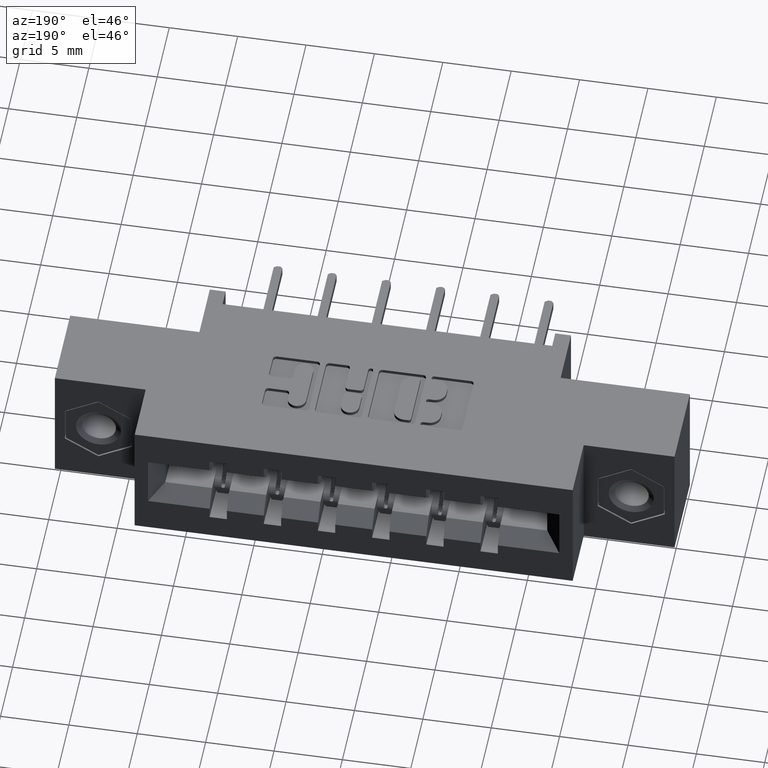
[diagram: clean part render]
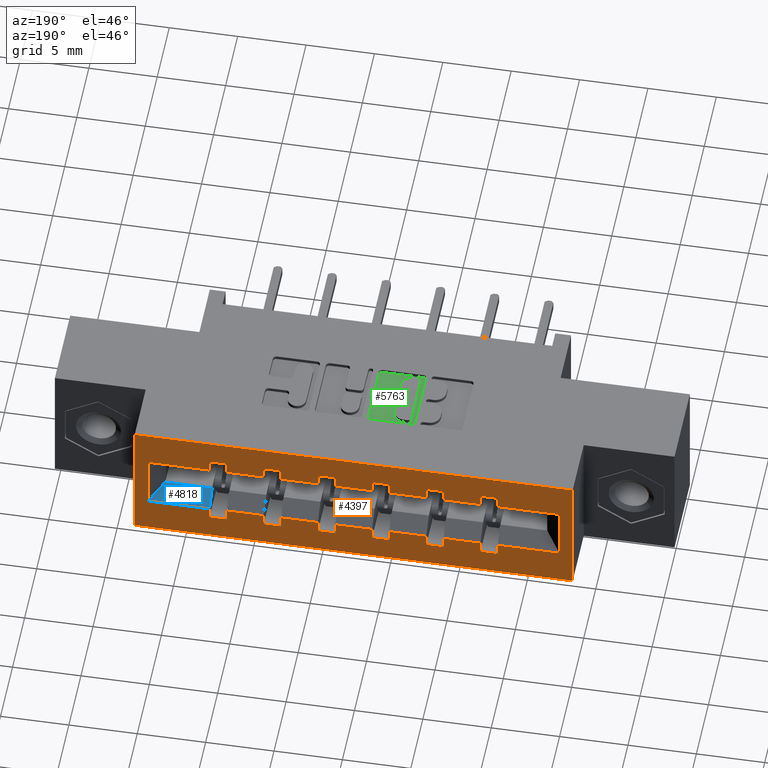
[diagram: same view with three faces highlighted in distinct colors, each labeled with its STEP entity id]
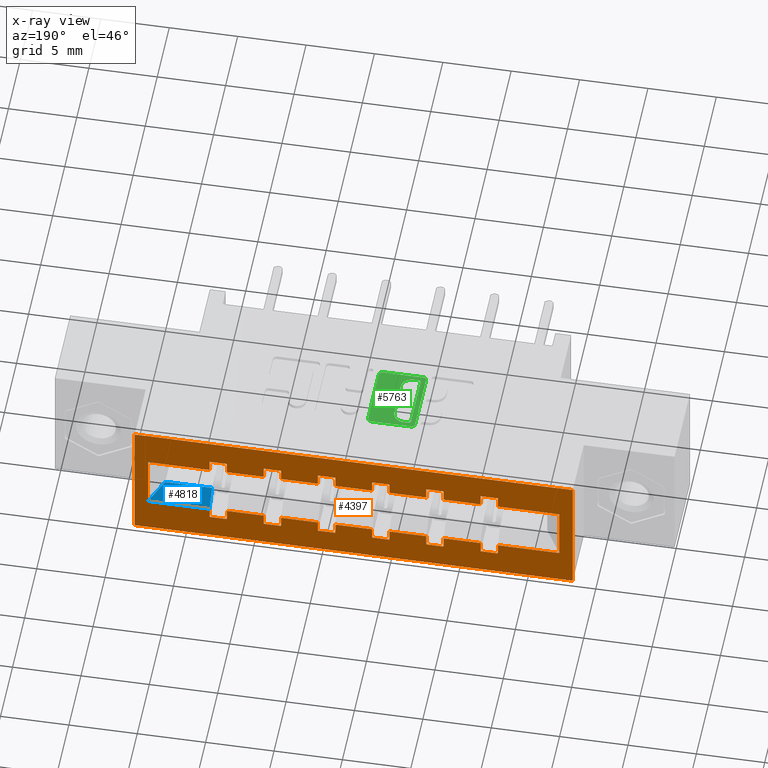
[diagram: x-ray of the same camera — body ghosted, the three highlighted faces saturated]
A machine part, auxiliary view with three faces highlighted in distinct colors.
The next image is the same camera in x-ray (body ghosted, the three faces saturated) — at least one of them is partly hidden behind the body in this view.
Their STEP definitions:

[orange] entity #4397 — the highlighted planar face has unit normal (0, -1, 0).
#73 = EDGE_CURVE ( 'NONE', #5885, #3686, #6283, .T. ) ;
#126 = EDGE_CURVE ( 'NONE', #3481, #6683, #7571, .T. ) ;
#140 = EDGE_CURVE ( 'NONE', #8311, #6920, #1560, .T. ) ;
#146 = LINE ( 'NONE', #7516, #7939 ) ;
#182 = EDGE_CURVE ( 'NONE', #5735, #3189, #7328, .T. ) ;
#215 = DIRECTION ( 'NONE',  ( -0.0000000000000000000, 1.809170856731306300E-015, 1.000000000000000000 ) ) ;
#234 = FACE_BOUND ( 'NONE', #7843, .T. ) ;
#240 = ORIENTED_EDGE ( 'NONE', *, *, #6482, .T. ) ;
#246 = DIRECTION ( 'NONE',  ( -0.0000000000000000000, 1.809170856731306300E-015, 1.000000000000000000 ) ) ;
#278 = VERTEX_POINT ( 'NONE', #6143 ) ;
#312 = EDGE_CURVE ( 'NONE', #7969, #9607, #3890, .T. ) ;
#351 = VERTEX_POINT ( 'NONE', #9042 ) ;
#390 = EDGE_CURVE ( 'NONE', #7865, #7034, #8943, .T. ) ;
#414 = ORIENTED_EDGE ( 'NONE', *, *, #4275, .T. ) ;
#437 = EDGE_CURVE ( 'NONE', #3139, #5885, #8480, .T. ) ;
#463 = CARTESIAN_POINT ( 'NONE',  ( 0.9949999999999998800, 0.5999999999999999800, -0.2640000000000001800 ) ) ;
#468 = LINE ( 'NONE', #2087, #2274 ) ;
#494 = DIRECTION ( 'NONE',  ( 1.000000000000000000, 0.0000000000000000000, 1.241749088029209900E-016 ) ) ;
#496 = CARTESIAN_POINT ( 'NONE',  ( 0.7889999999999998100, 0.5999999999999997600, -0.1060000000000004500 ) ) ;
#503 = EDGE_CURVE ( 'NONE', #6803, #2831, #8026, .T. ) ;
#505 = EDGE_CURVE ( 'NONE', #877, #6683, #6272, .T. ) ;
#581 = VECTOR ( 'NONE', #6144, 39.37007874015748100 ) ;
#582 = EDGE_CURVE ( 'NONE', #4668, #5138, #3552, .T. ) ;
#642 = ORIENTED_EDGE ( 'NONE', *, *, #437, .T. ) ;
#698 = DIRECTION ( 'NONE',  ( 1.000000000000000000, 0.0000000000000000000, 0.0000000000000000000 ) ) ;
#702 = CARTESIAN_POINT ( 'NONE',  ( 1.522500000000001100, 0.5999999999999999800, -0.3700000000000001600 ) ) ;
#746 = DIRECTION ( 'NONE',  ( 1.000000000000000000, 0.0000000000000000000, 1.241749088029209900E-016 ) ) ;
#771 = DIRECTION ( 'NONE',  ( -0.0000000000000000000, 1.809170856731306300E-015, 1.000000000000000000 ) ) ;
#796 = VERTEX_POINT ( 'NONE', #8656 ) ;
#842 = ORIENTED_EDGE ( 'NONE', *, *, #8759, .T. ) ;
#877 = VERTEX_POINT ( 'NONE', #3512 ) ;
#878 = ORIENTED_EDGE ( 'NONE', *, *, #1074, .T. ) ;
#910 = ORIENTED_EDGE ( 'NONE', *, *, #390, .T. ) ;
#924 = VECTOR ( 'NONE', #2619, 39.37007874015748100 ) ;
#931 = VERTEX_POINT ( 'NONE', #7490 ) ;
#935 = VECTOR ( 'NONE', #7828, 39.37007874015748100 ) ;
#942 = EDGE_CURVE ( 'NONE', #6227, #8997, #4218, .T. ) ;
#953 = VECTOR ( 'NONE', #2694, 39.37007874015748100 ) ;
#961 = VECTOR ( 'NONE', #4272, 39.37007874015748100 ) ;
#998 = LINE ( 'NONE', #4955, #4775 ) ;
#1014 = DIRECTION ( 'NONE',  ( 0.0000000000000000000, 0.0000000000000000000, 1.000000000000000000 ) ) ;
#1017 = ORIENTED_EDGE ( 'NONE', *, *, #2184, .F. ) ;
#1047 = VECTOR ( 'NONE', #2806, 39.37007874015748100 ) ;
#1061 = VECTOR ( 'NONE', #5341, 39.37007874015748100 ) ;
#1074 = EDGE_CURVE ( 'NONE', #3815, #8430, #5554, .T. ) ;
#1082 = VECTOR ( 'NONE', #6097, 39.37007874015748100 ) ;
#1097 = DIRECTION ( 'NONE',  ( -0.0000000000000000000, 1.809170856731306300E-015, 1.000000000000000000 ) ) ;
#1134 = VERTEX_POINT ( 'NONE', #2589 ) ;
#1145 = VERTEX_POINT ( 'NONE', #2376 ) ;
#1185 = LINE ( 'NONE', #2672, #953 ) ;
#1202 = ORIENTED_EDGE ( 'NONE', *, *, #3188, .T. ) ;
#1243 = VERTEX_POINT ( 'NONE', #3362 ) ;
#1255 = EDGE_CURVE ( 'NONE', #7519, #7716, #7660, .T. ) ;
#1278 = CARTESIAN_POINT ( 'NONE',  ( 0.5269999999999999100, 0.5999999999999999800, -0.2975000000000000400 ) ) ;
#1338 = ORIENTED_EDGE ( 'NONE', *, *, #7982, .T. ) ;
#1354 = VECTOR ( 'NONE', #8203, 39.37007874015748100 ) ;
#1465 = EDGE_CURVE ( 'NONE', #6278, #1501, #3885, .T. ) ;
#1501 = VERTEX_POINT ( 'NONE', #3725 ) ;
#1537 = ORIENTED_EDGE ( 'NONE', *, *, #6409, .F. ) ;
#1548 = CARTESIAN_POINT ( 'NONE',  ( 1.256999999999999700, 0.5999999999999997600, -0.1060000000000003900 ) ) ;
#1552 = VECTOR ( 'NONE', #746, 39.37007874015748100 ) ;
#1560 = LINE ( 'NONE', #7473, #5326 ) ;
#1622 = CARTESIAN_POINT ( 'NONE',  ( 0.9449999999999998400, 0.5999999999999997600, -0.1060000000000004000 ) ) ;
#1645 = LINE ( 'NONE', #4037, #3635 ) ;
#1650 = ORIENTED_EDGE ( 'NONE', *, *, #1672, .T. ) ;
#1672 = EDGE_CURVE ( 'NONE', #5138, #2668, #1778, .T. ) ;
#1689 = VECTOR ( 'NONE', #698, 39.37007874015748100 ) ;
#1692 = VECTOR ( 'NONE', #7253, 39.37007874015748100 ) ;
#1722 = CARTESIAN_POINT ( 'NONE',  ( 0.6329999999999999000, 0.5999999999999999800, -0.2975000000000000400 ) ) ;
#1778 = LINE ( 'NONE', #9619, #3544 ) ;
#1792 = EDGE_CURVE ( 'NONE', #3481, #7865, #6618, .T. ) ;
#1802 = ORIENTED_EDGE ( 'NONE', *, *, #3321, .T. ) ;
#1804 = VECTOR ( 'NONE', #3924, 39.37007874015748100 ) ;
#1818 = CARTESIAN_POINT ( 'NONE',  ( 0.9449999999999998400, 0.5999999999999999800, -0.2640000000000001800 ) ) ;
#1822 = VECTOR ( 'NONE', #8565, 39.37007874015748100 ) ;
#1824 = VERTEX_POINT ( 'NONE', #5042 ) ;
#1834 = CARTESIAN_POINT ( 'NONE',  ( 0.8389999999999998600, 0.5999999999999999800, -0.2975000000000000400 ) ) ;
#1905 = VECTOR ( 'NONE', #246, 39.37007874015748100 ) ;
#1918 = CARTESIAN_POINT ( 'NONE',  ( 0.8389999999999998600, 0.5999999999999998700, -0.07250000000000052200 ) ) ;
#1920 = DIRECTION ( 'NONE',  ( -1.000000000000000000, 0.0000000000000000000, -1.241749088029209900E-016 ) ) ;
#1952 = CARTESIAN_POINT ( 'NONE',  ( 0.8389999999999998600, 0.5999999999999997600, -0.1060000000000004500 ) ) ;
#1970 = ORIENTED_EDGE ( 'NONE', *, *, #8994, .T. ) ;
#1983 = VERTEX_POINT ( 'NONE', #8918 ) ;
#1984 = EDGE_CURVE ( 'NONE', #1145, #7969, #2977, .T. ) ;
#2002 = CARTESIAN_POINT ( 'NONE',  ( -1.316254033310958700E-017, 0.5999999999999999800, -0.2640000000000002900 ) ) ;
#2033 = VECTOR ( 'NONE', #7144, 39.37007874015748100 ) ;
#2055 = VECTOR ( 'NONE', #7119, 39.37007874015748100 ) ;
#2059 = LINE ( 'NONE', #8500, #1822 ) ;
#2064 = CARTESIAN_POINT ( 'NONE',  ( 1.306999999999999700, 0.5999999999999999800, -0.2640000000000001200 ) ) ;
#2087 = CARTESIAN_POINT ( 'NONE',  ( 0.7889999999999998100, 0.5999999999999998700, -0.07250000000000052200 ) ) ;
#2099 = DIRECTION ( 'NONE',  ( 0.0000000000000000000, -0.0000000000000000000, -1.000000000000000000 ) ) ;
#2109 = ORIENTED_EDGE ( 'NONE', *, *, #8148, .T. ) ;
#2116 = DIRECTION ( 'NONE',  ( 0.0000000000000000000, -1.000000000000000000, 0.0000000000000000000 ) ) ;
#2142 = PLANE ( 'NONE',  #5542 ) ;
#2181 = VERTEX_POINT ( 'NONE', #8877 ) ;
#2184 = EDGE_CURVE ( 'NONE', #8204, #3199, #5064, .T. ) ;
#2197 = CARTESIAN_POINT ( 'NONE',  ( 0.0000000000000000000, 0.5999999999999999800, -0.3700000000000000000 ) ) ;
#2203 = EDGE_LOOP ( 'NONE', ( #4759, #5481, #2679, #4779 ) ) ;
#2235 = LINE ( 'NONE', #9281, #7992 ) ;
#2274 = VECTOR ( 'NONE', #4331, 39.37007874015748100 ) ;
#2283 = VERTEX_POINT ( 'NONE', #7413 ) ;
#2300 = CARTESIAN_POINT ( 'NONE',  ( -1.316254033310958700E-017, 0.5999999999999999800, -0.2640000000000002900 ) ) ;
#2313 = ORIENTED_EDGE ( 'NONE', *, *, #3301, .F. ) ;
#2376 = CARTESIAN_POINT ( 'NONE',  ( 0.4769999999999999200, 0.5999999999999997600, -0.1060000000000005100 ) ) ;
#2393 = CARTESIAN_POINT ( 'NONE',  ( 1.101000000000000000, 0.5999999999999997600, -0.1060000000000003900 ) ) ;
#2463 = ORIENTED_EDGE ( 'NONE', *, *, #5707, .T. ) ;
#2475 = CARTESIAN_POINT ( 'NONE',  ( 1.306999999999999700, 0.5999999999999999800, -0.2975000000000000400 ) ) ;
#2510 = VECTOR ( 'NONE', #9374, 39.37007874015748100 ) ;
#2568 = CARTESIAN_POINT ( 'NONE',  ( 0.9949999999999998800, 0.5999999999999999800, -0.2975000000000000400 ) ) ;
#2577 = ORIENTED_EDGE ( 'NONE', *, *, #1792, .T. ) ;
#2589 = CARTESIAN_POINT ( 'NONE',  ( 0.2999999999999999300, 0.5999999999999999800, -0.1060000000000003200 ) ) ;
#2598 = CARTESIAN_POINT ( 'NONE',  ( 0.4769999999999999200, 0.5999999999999998700, -0.07250000000000052200 ) ) ;
#2611 = EDGE_CURVE ( 'NONE', #1134, #5735, #4203, .T. ) ;
#2615 = CARTESIAN_POINT ( 'NONE',  ( -3.278217592397109900E-017, 0.5999999999999999800, -0.1060000000000003600 ) ) ;
#2619 = DIRECTION ( 'NONE',  ( -0.0000000000000000000, 1.809170856731306300E-015, 1.000000000000000000 ) ) ;
#2642 = CARTESIAN_POINT ( 'NONE',  ( 0.0000000000000000000, 0.5999999999999999800, -0.3700000000000000000 ) ) ;
#2656 = ORIENTED_EDGE ( 'NONE', *, *, #8766, .T. ) ;
#2668 = VERTEX_POINT ( 'NONE', #2848 ) ;
#2671 = CARTESIAN_POINT ( 'NONE',  ( 1.101000000000000000, 0.5999999999999999800, -0.2975000000000000400 ) ) ;
#2672 = CARTESIAN_POINT ( 'NONE',  ( 1.101000000000000000, 0.5999999999999999800, -0.2975000000000000400 ) ) ;
#2679 = ORIENTED_EDGE ( 'NONE', *, *, #2688, .T. ) ;
#2688 = EDGE_CURVE ( 'NONE', #4621, #7265, #3079, .T. ) ;
#2694 = DIRECTION ( 'NONE',  ( 0.0000000000000000000, 0.0000000000000000000, 1.000000000000000000 ) ) ;
#2705 = DIRECTION ( 'NONE',  ( 1.000000000000000000, -0.0000000000000000000, -0.0000000000000000000 ) ) ;
#2717 = ORIENTED_EDGE ( 'NONE', *, *, #9076, .T. ) ;
#2727 = CARTESIAN_POINT ( 'NONE',  ( 1.101000000000000000, 0.5999999999999999800, -0.2975000000000000400 ) ) ;
#2736 = CARTESIAN_POINT ( 'NONE',  ( 0.2615000000000000700, 0.5999999999999999800, -0.3700000000000000000 ) ) ;
#2780 = CARTESIAN_POINT ( 'NONE',  ( 0.9449999999999998400, 0.5999999999999999800, -0.2975000000000000400 ) ) ;
#2783 = VERTEX_POINT ( 'NONE', #1548 ) ;
#2803 = DIRECTION ( 'NONE',  ( -1.000000000000000000, -0.0000000000000000000, -0.0000000000000000000 ) ) ;
#2806 = DIRECTION ( 'NONE',  ( -0.0000000000000000000, 1.809170856731306300E-015, 1.000000000000000000 ) ) ;
#2820 = DIRECTION ( 'NONE',  ( 0.0000000000000000000, 0.0000000000000000000, 1.000000000000000000 ) ) ;
#2831 = VERTEX_POINT ( 'NONE', #463 ) ;
#2848 = CARTESIAN_POINT ( 'NONE',  ( 0.6829999999999999400, 0.5999999999999998700, -0.07250000000000052200 ) ) ;
#2942 = ORIENTED_EDGE ( 'NONE', *, *, #6604, .F. ) ;
#2943 = EDGE_CURVE ( 'NONE', #8646, #877, #2235, .T. ) ;
#2975 = CARTESIAN_POINT ( 'NONE',  ( 0.6329999999999999000, 0.5999999999999999800, -0.2975000000000000400 ) ) ;
#2977 = LINE ( 'NONE', #7760, #935 ) ;
#3010 = VERTEX_POINT ( 'NONE', #8983 ) ;
#3013 = VERTEX_POINT ( 'NONE', #8966 ) ;
#3063 = DIRECTION ( 'NONE',  ( 1.000000000000000000, 0.0000000000000000000, 1.241749088029209900E-016 ) ) ;
#3079 = LINE ( 'NONE', #2642, #8569 ) ;
#3084 = EDGE_CURVE ( 'NONE', #7118, #5170, #2059, .T. ) ;
#3086 = VECTOR ( 'NONE', #8624, 39.37007874015748100 ) ;
#3120 = LINE ( 'NONE', #6186, #1082 ) ;
#3139 = VERTEX_POINT ( 'NONE', #8205 ) ;
#3154 = ORIENTED_EDGE ( 'NONE', *, *, #7419, .F. ) ;
#3188 = EDGE_CURVE ( 'NONE', #2831, #3010, #8849, .T. ) ;
#3189 = VERTEX_POINT ( 'NONE', #8117 ) ;
#3199 = VERTEX_POINT ( 'NONE', #8002 ) ;
#3215 = CARTESIAN_POINT ( 'NONE',  ( 0.6329999999999999000, 0.5999999999999999800, -0.2975000000000000400 ) ) ;
#3218 = LINE ( 'NONE', #4226, #4965 ) ;
#3219 = VECTOR ( 'NONE', #8098, 39.37007874015748100 ) ;
#3221 = LINE ( 'NONE', #2727, #8945 ) ;
#3301 = EDGE_CURVE ( 'NONE', #7118, #351, #146, .T. ) ;
#3306 = ORIENTED_EDGE ( 'NONE', *, *, #5766, .T. ) ;
#3321 = EDGE_CURVE ( 'NONE', #8204, #278, #3912, .T. ) ;
#3328 = CARTESIAN_POINT ( 'NONE',  ( -1.316254033310958700E-017, 0.5999999999999999800, -0.2640000000000002900 ) ) ;
#3362 = CARTESIAN_POINT ( 'NONE',  ( 0.2615000000000001200, 0.5999999999999999800, 0.0000000000000000000 ) ) ;
#3370 = CARTESIAN_POINT ( 'NONE',  ( 0.2999999999999999300, 0.5999999999999999800, -0.2640000000000002900 ) ) ;
#3398 = ORIENTED_EDGE ( 'NONE', *, *, #7847, .F. ) ;
#3409 = DIRECTION ( 'NONE',  ( 1.000000000000000000, 0.0000000000000000000, 1.241749088029209900E-016 ) ) ;
#3429 = CARTESIAN_POINT ( 'NONE',  ( -3.278217592397109900E-017, 0.5999999999999999800, -0.1060000000000003600 ) ) ;
#3439 = ORIENTED_EDGE ( 'NONE', *, *, #1984, .F. ) ;
#3440 = VECTOR ( 'NONE', #3946, 39.37007874015748100 ) ;
#3445 = EDGE_CURVE ( 'NONE', #4621, #931, #4746, .T. ) ;
#3481 = VERTEX_POINT ( 'NONE', #6862 ) ;
#3503 = VERTEX_POINT ( 'NONE', #6676 ) ;
#3512 = CARTESIAN_POINT ( 'NONE',  ( 1.151000000000000000, 0.5999999999999999800, -0.2640000000000001800 ) ) ;
#3527 = VECTOR ( 'NONE', #3733, 39.37007874015748100 ) ;
#3538 = CARTESIAN_POINT ( 'NONE',  ( 0.6829999999999999400, 0.5999999999999999800, -0.2975000000000000400 ) ) ;
#3544 = VECTOR ( 'NONE', #215, 39.37007874015748100 ) ;
#3550 = LINE ( 'NONE', #2300, #5563 ) ;
#3552 = LINE ( 'NONE', #6960, #7088 ) ;
#3561 = VECTOR ( 'NONE', #1014, 39.37007874015748100 ) ;
#3573 = VECTOR ( 'NONE', #6183, 39.37007874015748100 ) ;
#3583 = CARTESIAN_POINT ( 'NONE',  ( 0.6329999999999999000, 0.5999999999999997600, -0.1060000000000004800 ) ) ;
#3596 = ORIENTED_EDGE ( 'NONE', *, *, #8960, .F. ) ;
#3610 = EDGE_CURVE ( 'NONE', #796, #8430, #7115, .T. ) ;
#3617 = EDGE_CURVE ( 'NONE', #1145, #1134, #3120, .T. ) ;
#3635 = VECTOR ( 'NONE', #8548, 39.37007874015748100 ) ;
#3649 = LINE ( 'NONE', #4006, #1905 ) ;
#3686 = VERTEX_POINT ( 'NONE', #5813 ) ;
#3711 = ORIENTED_EDGE ( 'NONE', *, *, #503, .T. ) ;
#3725 = CARTESIAN_POINT ( 'NONE',  ( 1.484000000000000700, 0.5999999999999999800, -0.1060000000000001800 ) ) ;
#3727 = DIRECTION ( 'NONE',  ( 1.000000000000000000, 0.0000000000000000000, 1.241749088029209900E-016 ) ) ;
#3733 = DIRECTION ( 'NONE',  ( 0.0000000000000000000, 0.0000000000000000000, -1.000000000000000000 ) ) ;
#3734 = ORIENTED_EDGE ( 'NONE', *, *, #312, .F. ) ;
#3772 = LINE ( 'NONE', #7453, #1552 ) ;
#3815 = VERTEX_POINT ( 'NONE', #4959 ) ;
#3885 = LINE ( 'NONE', #3976, #9380 ) ;
#3890 = LINE ( 'NONE', #2598, #7680 ) ;
#3912 = LINE ( 'NONE', #7313, #1692 ) ;
#3913 = CARTESIAN_POINT ( 'NONE',  ( 0.2999999999999999300, 0.5999999999999999800, -0.3700000000000000000 ) ) ;
#3924 = DIRECTION ( 'NONE',  ( 1.000000000000000000, -0.0000000000000000000, -0.0000000000000000000 ) ) ;
#3946 = DIRECTION ( 'NONE',  ( 1.000000000000000000, -0.0000000000000000000, -0.0000000000000000000 ) ) ;
#3976 = CARTESIAN_POINT ( 'NONE',  ( 1.484000000000000700, 0.5999999999999999800, -0.3700000000000000000 ) ) ;
#4006 = CARTESIAN_POINT ( 'NONE',  ( 0.6329999999999999000, 0.5999999999999998700, -0.07250000000000052200 ) ) ;
#4011 = VECTOR ( 'NONE', #7862, 39.37007874015748100 ) ;
#4012 = FACE_OUTER_BOUND ( 'NONE', #2203, .T. ) ;
#4032 = ORIENTED_EDGE ( 'NONE', *, *, #2611, .T. ) ;
#4034 = LINE ( 'NONE', #2615, #2055 ) ;
#4037 = CARTESIAN_POINT ( 'NONE',  ( 0.9449999999999998400, 0.5999999999999999800, -0.2975000000000000400 ) ) ;
#4059 = CARTESIAN_POINT ( 'NONE',  ( 0.4769999999999999200, 0.5999999999999998700, -0.07250000000000052200 ) ) ;
#4082 = CARTESIAN_POINT ( 'NONE',  ( 1.256999999999999700, 0.5999999999999998700, -0.07250000000000052200 ) ) ;
#4126 = LINE ( 'NONE', #3328, #5936 ) ;
#4167 = CARTESIAN_POINT ( 'NONE',  ( 1.151000000000000000, 0.5999999999999998700, -0.07250000000000052200 ) ) ;
#4168 = EDGE_CURVE ( 'NONE', #3503, #8997, #4126, .T. ) ;
#4174 = DIRECTION ( 'NONE',  ( 1.000000000000000000, -0.0000000000000000000, -0.0000000000000000000 ) ) ;
#4203 = LINE ( 'NONE', #3913, #3527 ) ;
#4218 = LINE ( 'NONE', #2780, #8013 ) ;
#4226 = CARTESIAN_POINT ( 'NONE',  ( 0.4769999999999999200, 0.5999999999999999800, -0.2975000000000000400 ) ) ;
#4272 = DIRECTION ( 'NONE',  ( 0.0000000000000000000, 0.0000000000000000000, 1.000000000000000000 ) ) ;
#4275 = EDGE_CURVE ( 'NONE', #6373, #8646, #3221, .T. ) ;
#4283 = VECTOR ( 'NONE', #494, 39.37007874015748100 ) ;
#4284 = ORIENTED_EDGE ( 'NONE', *, *, #140, .F. ) ;
#4287 = ORIENTED_EDGE ( 'NONE', *, *, #8654, .F. ) ;
#4289 = EDGE_CURVE ( 'NONE', #6373, #3010, #1185, .T. ) ;
#4292 = DIRECTION ( 'NONE',  ( -0.0000000000000000000, 1.809170856731306300E-015, 1.000000000000000000 ) ) ;
#4294 = CARTESIAN_POINT ( 'NONE',  ( -3.278217592397109900E-017, 0.5999999999999999800, -0.1060000000000003600 ) ) ;
#4316 = CARTESIAN_POINT ( 'NONE',  ( 0.5269999999999999100, 0.5999999999999998700, -0.07250000000000052200 ) ) ;
#4331 = DIRECTION ( 'NONE',  ( 1.000000000000000000, -0.0000000000000000000, -0.0000000000000000000 ) ) ;
#4353 = ORIENTED_EDGE ( 'NONE', *, *, #4289, .F. ) ;
#4397 = ADVANCED_FACE ( 'NONE', ( #4012, #234 ), #2142, .F. ) ;
#4433 = ORIENTED_EDGE ( 'NONE', *, *, #182, .T. ) ;
#4453 = ORIENTED_EDGE ( 'NONE', *, *, #1255, .T. ) ;
#4517 = CARTESIAN_POINT ( 'NONE',  ( 1.151000000000000000, 0.5999999999999998700, -0.07250000000000052200 ) ) ;
#4523 = LINE ( 'NONE', #2002, #4283 ) ;
#4561 = CARTESIAN_POINT ( 'NONE',  ( 1.101000000000000000, 0.5999999999999998700, -0.07250000000000052200 ) ) ;
#4565 = DIRECTION ( 'NONE',  ( 0.0000000000000000000, 0.0000000000000000000, 1.000000000000000000 ) ) ;
#4621 = VERTEX_POINT ( 'NONE', #702 ) ;
#4668 = VERTEX_POINT ( 'NONE', #496 ) ;
#4724 = VECTOR ( 'NONE', #8905, 39.37007874015748100 ) ;
#4746 = LINE ( 'NONE', #6901, #8965 ) ;
#4759 = ORIENTED_EDGE ( 'NONE', *, *, #7643, .T. ) ;
#4775 = VECTOR ( 'NONE', #4174, 39.37007874015748100 ) ;
#4779 = ORIENTED_EDGE ( 'NONE', *, *, #6412, .F. ) ;
#4789 = CARTESIAN_POINT ( 'NONE',  ( 0.9449999999999998400, 0.5999999999999999800, -0.2975000000000000400 ) ) ;
#4795 = ORIENTED_EDGE ( 'NONE', *, *, #942, .F. ) ;
#4822 = DIRECTION ( 'NONE',  ( 0.0000000000000000000, 0.0000000000000000000, 1.000000000000000000 ) ) ;
#4876 = CARTESIAN_POINT ( 'NONE',  ( 0.9949999999999998800, 0.5999999999999998700, -0.07250000000000052200 ) ) ;
#4877 = VECTOR ( 'NONE', #8039, 39.37007874015748100 ) ;
#4955 = CARTESIAN_POINT ( 'NONE',  ( 0.9449999999999998400, 0.5999999999999998700, -0.07250000000000052200 ) ) ;
#4959 = CARTESIAN_POINT ( 'NONE',  ( 1.306999999999999700, 0.5999999999999997600, -0.1060000000000003700 ) ) ;
#4965 = VECTOR ( 'NONE', #5782, 39.37007874015748100 ) ;
#4971 = CARTESIAN_POINT ( 'NONE',  ( -1.316254033310958700E-017, 0.5999999999999999800, -0.2640000000000002900 ) ) ;
#5019 = LINE ( 'NONE', #2736, #8533 ) ;
#5042 = CARTESIAN_POINT ( 'NONE',  ( 0.6829999999999999400, 0.5999999999999999800, -0.2640000000000002300 ) ) ;
#5064 = LINE ( 'NONE', #8796, #3086 ) ;
#5114 = CARTESIAN_POINT ( 'NONE',  ( 0.7889999999999998100, 0.5999999999999999800, -0.2975000000000000400 ) ) ;
#5138 = VERTEX_POINT ( 'NONE', #7552 ) ;
#5170 = VERTEX_POINT ( 'NONE', #1952 ) ;
#5225 = CARTESIAN_POINT ( 'NONE',  ( 0.0000000000000000000, 0.5999999999999999800, 0.0000000000000000000 ) ) ;
#5326 = VECTOR ( 'NONE', #7489, 39.37007874015748100 ) ;
#5341 = DIRECTION ( 'NONE',  ( -0.0000000000000000000, 1.809170856731306300E-015, 1.000000000000000000 ) ) ;
#5427 = VECTOR ( 'NONE', #9553, 39.37007874015748100 ) ;
#5447 = EDGE_CURVE ( 'NONE', #7716, #9607, #9026, .T. ) ;
#5481 = ORIENTED_EDGE ( 'NONE', *, *, #3445, .F. ) ;
#5542 = AXIS2_PLACEMENT_3D ( 'NONE', #2197, #2116, #2099 ) ;
#5554 = LINE ( 'NONE', #6583, #8806 ) ;
#5563 = VECTOR ( 'NONE', #3063, 39.37007874015748100 ) ;
#5598 = LINE ( 'NONE', #7993, #9292 ) ;
#5636 = EDGE_CURVE ( 'NONE', #6227, #6803, #1645, .T. ) ;
#5695 = CARTESIAN_POINT ( 'NONE',  ( 0.5269999999999999100, 0.5999999999999998700, -0.07250000000000052200 ) ) ;
#5707 = EDGE_CURVE ( 'NONE', #2181, #2283, #6730, .T. ) ;
#5735 = VERTEX_POINT ( 'NONE', #3370 ) ;
#5766 = EDGE_CURVE ( 'NONE', #2783, #3013, #8227, .T. ) ;
#5782 = DIRECTION ( 'NONE',  ( 0.0000000000000000000, 0.0000000000000000000, 1.000000000000000000 ) ) ;
#5788 = DIRECTION ( 'NONE',  ( 1.000000000000000000, -0.0000000000000000000, -0.0000000000000000000 ) ) ;
#5813 = CARTESIAN_POINT ( 'NONE',  ( 0.5269999999999999100, 0.5999999999999999800, -0.2640000000000002900 ) ) ;
#5861 = ORIENTED_EDGE ( 'NONE', *, *, #8573, .F. ) ;
#5883 = ORIENTED_EDGE ( 'NONE', *, *, #7706, .T. ) ;
#5885 = VERTEX_POINT ( 'NONE', #6596 ) ;
#5936 = VECTOR ( 'NONE', #3409, 39.37007874015748100 ) ;
#6061 = ORIENTED_EDGE ( 'NONE', *, *, #7351, .T. ) ;
#6097 = DIRECTION ( 'NONE',  ( -1.000000000000000000, 0.0000000000000000000, -1.241749088029209900E-016 ) ) ;
#6143 = CARTESIAN_POINT ( 'NONE',  ( 0.8389999999999998600, 0.5999999999999999800, -0.2975000000000000400 ) ) ;
#6144 = DIRECTION ( 'NONE',  ( 1.000000000000000000, -0.0000000000000000000, -0.0000000000000000000 ) ) ;
#6166 = ORIENTED_EDGE ( 'NONE', *, *, #126, .F. ) ;
#6183 = DIRECTION ( 'NONE',  ( 1.000000000000000000, -0.0000000000000000000, -0.0000000000000000000 ) ) ;
#6186 = CARTESIAN_POINT ( 'NONE',  ( -3.278217592397109900E-017, 0.5999999999999999800, -0.1060000000000003600 ) ) ;
#6193 = CARTESIAN_POINT ( 'NONE',  ( 1.256999999999999700, 0.5999999999999999800, -0.2975000000000000400 ) ) ;
#6196 = CARTESIAN_POINT ( 'NONE',  ( 1.256999999999999700, 0.5999999999999998700, -0.07250000000000052200 ) ) ;
#6227 = VERTEX_POINT ( 'NONE', #4789 ) ;
#6272 = LINE ( 'NONE', #7691, #4011 ) ;
#6273 = CARTESIAN_POINT ( 'NONE',  ( 1.256999999999999700, 0.5999999999999999800, -0.2975000000000000400 ) ) ;
#6278 = VERTEX_POINT ( 'NONE', #6360 ) ;
#6283 = LINE ( 'NONE', #1278, #2033 ) ;
#6303 = CARTESIAN_POINT ( 'NONE',  ( -3.278217592397109900E-017, 0.5999999999999999800, -0.1060000000000003600 ) ) ;
#6337 = EDGE_CURVE ( 'NONE', #2783, #796, #9427, .T. ) ;
#6360 = CARTESIAN_POINT ( 'NONE',  ( 1.484000000000000700, 0.5999999999999999800, -0.2640000000000001200 ) ) ;
#6373 = VERTEX_POINT ( 'NONE', #2671 ) ;
#6374 = CARTESIAN_POINT ( 'NONE',  ( 0.6329999999999999000, 0.5999999999999998700, -0.07250000000000052200 ) ) ;
#6409 = EDGE_CURVE ( 'NONE', #351, #2283, #998, .T. ) ;
#6410 = VECTOR ( 'NONE', #4822, 39.37007874015748100 ) ;
#6412 = EDGE_CURVE ( 'NONE', #1243, #7265, #5019, .T. ) ;
#6482 = EDGE_CURVE ( 'NONE', #3686, #1983, #4523, .T. ) ;
#6583 = CARTESIAN_POINT ( 'NONE',  ( 1.306999999999999700, 0.5999999999999998700, -0.07250000000000052200 ) ) ;
#6596 = CARTESIAN_POINT ( 'NONE',  ( 0.5269999999999999100, 0.5999999999999999800, -0.2975000000000000400 ) ) ;
#6604 = EDGE_CURVE ( 'NONE', #8900, #1983, #7135, .T. ) ;
#6606 = CARTESIAN_POINT ( 'NONE',  ( 1.151000000000000000, 0.5999999999999999800, -0.2975000000000000400 ) ) ;
#6618 = LINE ( 'NONE', #6193, #581 ) ;
#6676 = CARTESIAN_POINT ( 'NONE',  ( 0.8389999999999998600, 0.5999999999999999800, -0.2640000000000002300 ) ) ;
#6683 = VERTEX_POINT ( 'NONE', #8427 ) ;
#6730 = LINE ( 'NONE', #4876, #924 ) ;
#6772 = VECTOR ( 'NONE', #771, 39.37007874015748100 ) ;
#6783 = ORIENTED_EDGE ( 'NONE', *, *, #3084, .T. ) ;
#6786 = CARTESIAN_POINT ( 'NONE',  ( 1.101000000000000000, 0.5999999999999998700, -0.07250000000000052200 ) ) ;
#6803 = VERTEX_POINT ( 'NONE', #2568 ) ;
#6830 = CARTESIAN_POINT ( 'NONE',  ( 0.5269999999999999100, 0.5999999999999999800, -0.1060000000000002900 ) ) ;
#6841 = DIRECTION ( 'NONE',  ( -1.000000000000000000, 0.0000000000000000000, -1.241749088029209900E-016 ) ) ;
#6862 = CARTESIAN_POINT ( 'NONE',  ( 1.256999999999999700, 0.5999999999999999800, -0.2975000000000000400 ) ) ;
#6868 = DIRECTION ( 'NONE',  ( 0.0000000000000000000, 0.0000000000000000000, 1.000000000000000000 ) ) ;
#6901 = CARTESIAN_POINT ( 'NONE',  ( 1.522500000000001100, 0.5999999999999999800, -0.3700000000000001600 ) ) ;
#6920 = VERTEX_POINT ( 'NONE', #4167 ) ;
#6960 = CARTESIAN_POINT ( 'NONE',  ( -3.278217592397109900E-017, 0.5999999999999999800, -0.1060000000000003600 ) ) ;
#6965 = LINE ( 'NONE', #1918, #8239 ) ;
#6985 = LINE ( 'NONE', #3538, #961 ) ;
#7034 = VERTEX_POINT ( 'NONE', #2064 ) ;
#7081 = DIRECTION ( 'NONE',  ( -1.000000000000000000, 0.0000000000000000000, -1.241749088029209900E-016 ) ) ;
#7086 = LINE ( 'NONE', #4561, #1061 ) ;
#7088 = VECTOR ( 'NONE', #6841, 39.37007874015748100 ) ;
#7115 = LINE ( 'NONE', #6196, #3573 ) ;
#7118 = VERTEX_POINT ( 'NONE', #1622 ) ;
#7119 = DIRECTION ( 'NONE',  ( -1.000000000000000000, 0.0000000000000000000, -1.241749088029209900E-016 ) ) ;
#7135 = LINE ( 'NONE', #2975, #1354 ) ;
#7144 = DIRECTION ( 'NONE',  ( 0.0000000000000000000, 0.0000000000000000000, 1.000000000000000000 ) ) ;
#7145 = VERTEX_POINT ( 'NONE', #2393 ) ;
#7196 = VECTOR ( 'NONE', #7081, 39.37007874015748100 ) ;
#7250 = VECTOR ( 'NONE', #1097, 39.37007874015748100 ) ;
#7253 = DIRECTION ( 'NONE',  ( 1.000000000000000000, -0.0000000000000000000, -0.0000000000000000000 ) ) ;
#7265 = VERTEX_POINT ( 'NONE', #8508 ) ;
#7270 = VERTEX_POINT ( 'NONE', #9228 ) ;
#7306 = DIRECTION ( 'NONE',  ( -0.0000000000000000000, 1.809170856731306300E-015, 1.000000000000000000 ) ) ;
#7313 = CARTESIAN_POINT ( 'NONE',  ( 0.7889999999999998100, 0.5999999999999999800, -0.2975000000000000400 ) ) ;
#7328 = LINE ( 'NONE', #4971, #9052 ) ;
#7336 = ORIENTED_EDGE ( 'NONE', *, *, #5447, .T. ) ;
#7351 = EDGE_CURVE ( 'NONE', #7145, #2181, #4034, .T. ) ;
#7413 = CARTESIAN_POINT ( 'NONE',  ( 0.9949999999999998800, 0.5999999999999998700, -0.07250000000000052200 ) ) ;
#7419 = EDGE_CURVE ( 'NONE', #4668, #8152, #5598, .T. ) ;
#7437 = LINE ( 'NONE', #6303, #7196 ) ;
#7453 = CARTESIAN_POINT ( 'NONE',  ( -1.316254033310958700E-017, 0.5999999999999999800, -0.2640000000000002900 ) ) ;
#7473 = CARTESIAN_POINT ( 'NONE',  ( 1.101000000000000000, 0.5999999999999998700, -0.07250000000000052200 ) ) ;
#7489 = DIRECTION ( 'NONE',  ( 1.000000000000000000, -0.0000000000000000000, -0.0000000000000000000 ) ) ;
#7490 = CARTESIAN_POINT ( 'NONE',  ( 1.522500000000001100, 0.5999999999999999800, -1.704402182713329600E-016 ) ) ;
#7496 = DIRECTION ( 'NONE',  ( -0.0000000000000000000, 1.809170856731306300E-015, 1.000000000000000000 ) ) ;
#7498 = VERTEX_POINT ( 'NONE', #9500 ) ;
#7516 = CARTESIAN_POINT ( 'NONE',  ( 0.9449999999999998400, 0.5999999999999998700, -0.07250000000000052200 ) ) ;
#7519 = VERTEX_POINT ( 'NONE', #3583 ) ;
#7552 = CARTESIAN_POINT ( 'NONE',  ( 0.6829999999999999400, 0.5999999999999997600, -0.1060000000000004800 ) ) ;
#7571 = LINE ( 'NONE', #6273, #3561 ) ;
#7578 = LINE ( 'NONE', #8429, #1804 ) ;
#7594 = ORIENTED_EDGE ( 'NONE', *, *, #3617, .T. ) ;
#7617 = ORIENTED_EDGE ( 'NONE', *, *, #3610, .F. ) ;
#7643 = EDGE_CURVE ( 'NONE', #1243, #931, #9176, .T. ) ;
#7660 = LINE ( 'NONE', #4294, #5427 ) ;
#7680 = VECTOR ( 'NONE', #5788, 39.37007874015748100 ) ;
#7691 = CARTESIAN_POINT ( 'NONE',  ( -1.316254033310958700E-017, 0.5999999999999999800, -0.2640000000000002900 ) ) ;
#7700 = ORIENTED_EDGE ( 'NONE', *, *, #73, .T. ) ;
#7706 = EDGE_CURVE ( 'NONE', #3013, #6920, #8726, .T. ) ;
#7716 = VERTEX_POINT ( 'NONE', #6830 ) ;
#7760 = CARTESIAN_POINT ( 'NONE',  ( 0.4769999999999999200, 0.5999999999999998700, -0.07250000000000052200 ) ) ;
#7828 = DIRECTION ( 'NONE',  ( -0.0000000000000000000, 1.809170856731306300E-015, 1.000000000000000000 ) ) ;
#7843 = EDGE_LOOP ( 'NONE', ( #7617, #9074, #3306, #5883, #4284, #9335, #6061, #2463, #1537, #2313, #6783, #2717, #4287, #3154, #8385, #1650, #3398, #3596, #4453, #7336, #3734, #3439, #7594, #4032, #4433, #5861, #642, #7700, #240, #2942, #8865, #2109, #842, #1017, #1802, #1338, #9291, #4795, #9093, #3711, #1202, #4353, #414, #8182, #8329, #6166, #2577, #910, #2656, #8618, #1970, #878 ) ) ;
#7847 = EDGE_CURVE ( 'NONE', #9008, #2668, #7578, .T. ) ;
#7862 = DIRECTION ( 'NONE',  ( 1.000000000000000000, 0.0000000000000000000, 1.241749088029209900E-016 ) ) ;
#7865 = VERTEX_POINT ( 'NONE', #2475 ) ;
#7882 = CARTESIAN_POINT ( 'NONE',  ( 0.4769999999999999200, 0.5999999999999999800, -0.2975000000000000400 ) ) ;
#7939 = VECTOR ( 'NONE', #7496, 39.37007874015748100 ) ;
#7969 = VERTEX_POINT ( 'NONE', #4059 ) ;
#7982 = EDGE_CURVE ( 'NONE', #278, #3503, #8611, .T. ) ;
#7992 = VECTOR ( 'NONE', #9293, 39.37007874015748100 ) ;
#7993 = CARTESIAN_POINT ( 'NONE',  ( 0.7889999999999998100, 0.5999999999999998700, -0.07250000000000052200 ) ) ;
#8002 = CARTESIAN_POINT ( 'NONE',  ( 0.7889999999999998100, 0.5999999999999999800, -0.2640000000000002300 ) ) ;
#8013 = VECTOR ( 'NONE', #2820, 39.37007874015748100 ) ;
#8026 = LINE ( 'NONE', #8881, #2510 ) ;
#8039 = DIRECTION ( 'NONE',  ( 1.000000000000000000, 0.0000000000000000000, 1.241749088029209900E-016 ) ) ;
#8053 = CARTESIAN_POINT ( 'NONE',  ( -1.316254033310958700E-017, 0.5999999999999999800, -0.2640000000000002900 ) ) ;
#8098 = DIRECTION ( 'NONE',  ( 0.0000000000000000000, 0.0000000000000000000, 1.000000000000000000 ) ) ;
#8117 = CARTESIAN_POINT ( 'NONE',  ( 0.4769999999999999200, 0.5999999999999999800, -0.2640000000000002900 ) ) ;
#8119 = CARTESIAN_POINT ( 'NONE',  ( 1.306999999999999700, 0.5999999999999999800, -0.2975000000000000400 ) ) ;
#8148 = EDGE_CURVE ( 'NONE', #7498, #1824, #6985, .T. ) ;
#8152 = VERTEX_POINT ( 'NONE', #8776 ) ;
#8182 = ORIENTED_EDGE ( 'NONE', *, *, #2943, .T. ) ;
#8204 = VERTEX_POINT ( 'NONE', #5114 ) ;
#8203 = DIRECTION ( 'NONE',  ( 0.0000000000000000000, 0.0000000000000000000, 1.000000000000000000 ) ) ;
#8205 = CARTESIAN_POINT ( 'NONE',  ( 0.4769999999999999200, 0.5999999999999999800, -0.2975000000000000400 ) ) ;
#8227 = LINE ( 'NONE', #3429, #8451 ) ;
#8239 = VECTOR ( 'NONE', #4292, 39.37007874015748100 ) ;
#8311 = VERTEX_POINT ( 'NONE', #6786 ) ;
#8329 = ORIENTED_EDGE ( 'NONE', *, *, #505, .T. ) ;
#8353 = CARTESIAN_POINT ( 'NONE',  ( 1.306999999999999700, 0.5999999999999998700, -0.07250000000000052200 ) ) ;
#8385 = ORIENTED_EDGE ( 'NONE', *, *, #582, .T. ) ;
#8427 = CARTESIAN_POINT ( 'NONE',  ( 1.256999999999999700, 0.5999999999999999800, -0.2640000000000001200 ) ) ;
#8429 = CARTESIAN_POINT ( 'NONE',  ( 0.6329999999999999000, 0.5999999999999998700, -0.07250000000000052200 ) ) ;
#8430 = VERTEX_POINT ( 'NONE', #8353 ) ;
#8451 = VECTOR ( 'NONE', #1920, 39.37007874015748100 ) ;
#8480 = LINE ( 'NONE', #7882, #4724 ) ;
#8500 = CARTESIAN_POINT ( 'NONE',  ( -3.278217592397109900E-017, 0.5999999999999999800, -0.1060000000000003600 ) ) ;
#8508 = CARTESIAN_POINT ( 'NONE',  ( 0.2615000000000000700, 0.5999999999999999800, -0.3700000000000000000 ) ) ;
#8513 = EDGE_CURVE ( 'NONE', #8900, #7498, #9386, .T. ) ;
#8533 = VECTOR ( 'NONE', #8715, 39.37007874015748100 ) ;
#8548 = DIRECTION ( 'NONE',  ( 1.000000000000000000, -0.0000000000000000000, -0.0000000000000000000 ) ) ;
#8565 = DIRECTION ( 'NONE',  ( -1.000000000000000000, 0.0000000000000000000, -1.241749088029209900E-016 ) ) ;
#8569 = VECTOR ( 'NONE', #2803, 39.37007874015748100 ) ;
#8573 = EDGE_CURVE ( 'NONE', #3139, #3189, #3218, .T. ) ;
#8611 = LINE ( 'NONE', #1834, #6410 ) ;
#8618 = ORIENTED_EDGE ( 'NONE', *, *, #1465, .T. ) ;
#8624 = DIRECTION ( 'NONE',  ( 0.0000000000000000000, 0.0000000000000000000, 1.000000000000000000 ) ) ;
#8646 = VERTEX_POINT ( 'NONE', #6606 ) ;
#8654 = EDGE_CURVE ( 'NONE', #8152, #7270, #468, .T. ) ;
#8656 = CARTESIAN_POINT ( 'NONE',  ( 1.256999999999999700, 0.5999999999999998700, -0.07250000000000052200 ) ) ;
#8715 = DIRECTION ( 'NONE',  ( -9.229216194811698800E-017, -0.0000000000000000000, -1.000000000000000000 ) ) ;
#8724 = DIRECTION ( 'NONE',  ( -0.0000000000000000000, 1.809170856731306300E-015, 1.000000000000000000 ) ) ;
#8726 = LINE ( 'NONE', #4517, #6772 ) ;
#8759 = EDGE_CURVE ( 'NONE', #1824, #3199, #3772, .T. ) ;
#8766 = EDGE_CURVE ( 'NONE', #7034, #6278, #3550, .T. ) ;
#8776 = CARTESIAN_POINT ( 'NONE',  ( 0.7889999999999998100, 0.5999999999999998700, -0.07250000000000052200 ) ) ;
#8796 = CARTESIAN_POINT ( 'NONE',  ( 0.7889999999999998100, 0.5999999999999999800, -0.2975000000000000400 ) ) ;
#8806 = VECTOR ( 'NONE', #7306, 39.37007874015748100 ) ;
#8815 = EDGE_CURVE ( 'NONE', #7145, #8311, #7086, .T. ) ;
#8849 = LINE ( 'NONE', #8053, #4877 ) ;
#8865 = ORIENTED_EDGE ( 'NONE', *, *, #8513, .T. ) ;
#8877 = CARTESIAN_POINT ( 'NONE',  ( 0.9949999999999998800, 0.5999999999999997600, -0.1060000000000004000 ) ) ;
#8881 = CARTESIAN_POINT ( 'NONE',  ( 0.9949999999999998800, 0.5999999999999999800, -0.2975000000000000400 ) ) ;
#8900 = VERTEX_POINT ( 'NONE', #3215 ) ;
#8905 = DIRECTION ( 'NONE',  ( 1.000000000000000000, -0.0000000000000000000, -0.0000000000000000000 ) ) ;
#8918 = CARTESIAN_POINT ( 'NONE',  ( 0.6329999999999999000, 0.5999999999999999800, -0.2640000000000002300 ) ) ;
#8943 = LINE ( 'NONE', #8119, #3219 ) ;
#8945 = VECTOR ( 'NONE', #2705, 39.37007874015748100 ) ;
#8960 = EDGE_CURVE ( 'NONE', #7519, #9008, #3649, .T. ) ;
#8965 = VECTOR ( 'NONE', #6868, 39.37007874015748100 ) ;
#8966 = CARTESIAN_POINT ( 'NONE',  ( 1.151000000000000000, 0.5999999999999997600, -0.1060000000000003900 ) ) ;
#8983 = CARTESIAN_POINT ( 'NONE',  ( 1.101000000000000000, 0.5999999999999999800, -0.2640000000000001800 ) ) ;
#8994 = EDGE_CURVE ( 'NONE', #1501, #3815, #7437, .T. ) ;
#8997 = VERTEX_POINT ( 'NONE', #1818 ) ;
#9008 = VERTEX_POINT ( 'NONE', #6374 ) ;
#9026 = LINE ( 'NONE', #4316, #1047 ) ;
#9042 = CARTESIAN_POINT ( 'NONE',  ( 0.9449999999999998400, 0.5999999999999998700, -0.07250000000000052200 ) ) ;
#9052 = VECTOR ( 'NONE', #3727, 39.37007874015748100 ) ;
#9074 = ORIENTED_EDGE ( 'NONE', *, *, #6337, .F. ) ;
#9076 = EDGE_CURVE ( 'NONE', #5170, #7270, #6965, .T. ) ;
#9093 = ORIENTED_EDGE ( 'NONE', *, *, #5636, .T. ) ;
#9176 = LINE ( 'NONE', #5225, #1689 ) ;
#9228 = CARTESIAN_POINT ( 'NONE',  ( 0.8389999999999998600, 0.5999999999999998700, -0.07250000000000052200 ) ) ;
#9281 = CARTESIAN_POINT ( 'NONE',  ( 1.151000000000000000, 0.5999999999999999800, -0.2975000000000000400 ) ) ;
#9291 = ORIENTED_EDGE ( 'NONE', *, *, #4168, .T. ) ;
#9292 = VECTOR ( 'NONE', #8724, 39.37007874015748100 ) ;
#9293 = DIRECTION ( 'NONE',  ( 0.0000000000000000000, 0.0000000000000000000, 1.000000000000000000 ) ) ;
#9335 = ORIENTED_EDGE ( 'NONE', *, *, #8815, .F. ) ;
#9374 = DIRECTION ( 'NONE',  ( 0.0000000000000000000, 0.0000000000000000000, 1.000000000000000000 ) ) ;
#9380 = VECTOR ( 'NONE', #4565, 39.37007874015748100 ) ;
#9386 = LINE ( 'NONE', #1722, #3440 ) ;
#9427 = LINE ( 'NONE', #4082, #7250 ) ;
#9500 = CARTESIAN_POINT ( 'NONE',  ( 0.6829999999999999400, 0.5999999999999999800, -0.2975000000000000400 ) ) ;
#9553 = DIRECTION ( 'NONE',  ( -1.000000000000000000, 0.0000000000000000000, -1.241749088029209900E-016 ) ) ;
#9607 = VERTEX_POINT ( 'NONE', #5695 ) ;
#9619 = CARTESIAN_POINT ( 'NONE',  ( 0.6829999999999999400, 0.5999999999999998700, -0.07250000000000052200 ) ) ;

[blue] entity #4818 — the highlighted planar face has unit normal (0, -0.7071, -0.7071).
#135 = EDGE_CURVE ( 'NONE', #7375, #7034, #9493, .T. ) ;
#489 = DIRECTION ( 'NONE',  ( -0.0000000000000000000, 0.7071067811865475700, -0.7071067811865474600 ) ) ;
#598 = AXIS2_PLACEMENT_3D ( 'NONE', #5569, #5319, #5486 ) ;
#640 = CARTESIAN_POINT ( 'NONE',  ( 0.3419999999999999200, 0.5579999999999999400, -0.2220000000000002800 ) ) ;
#1169 = VECTOR ( 'NONE', #3977, 39.37007874015748100 ) ;
#1280 = EDGE_CURVE ( 'NONE', #6278, #4247, #3202, .T. ) ;
#1815 = ORIENTED_EDGE ( 'NONE', *, *, #1280, .F. ) ;
#2064 = CARTESIAN_POINT ( 'NONE',  ( 1.306999999999999700, 0.5999999999999999800, -0.2640000000000001200 ) ) ;
#2071 = ORIENTED_EDGE ( 'NONE', *, *, #8766, .F. ) ;
#2300 = CARTESIAN_POINT ( 'NONE',  ( -1.316254033310958700E-017, 0.5999999999999999800, -0.2640000000000002900 ) ) ;
#2827 = CARTESIAN_POINT ( 'NONE',  ( 1.442000000000000600, 0.5579999999999999400, -0.2220000000000001400 ) ) ;
#3063 = DIRECTION ( 'NONE',  ( 1.000000000000000000, 0.0000000000000000000, 1.241749088029209900E-016 ) ) ;
#3202 = LINE ( 'NONE', #6477, #1169 ) ;
#3550 = LINE ( 'NONE', #2300, #5563 ) ;
#3640 = DIRECTION ( 'NONE',  ( -1.000000000000000000, 0.0000000000000000000, -1.241749088029209900E-016 ) ) ;
#3977 = DIRECTION ( 'NONE',  ( -0.5773502691896258400, -0.5773502691896258400, 0.5773502691896256200 ) ) ;
#4030 = CARTESIAN_POINT ( 'NONE',  ( 1.306999999999999700, 0.5580000000000000500, -0.2220000000000002200 ) ) ;
#4166 = PLANE ( 'NONE',  #598 ) ;
#4247 = VERTEX_POINT ( 'NONE', #2827 ) ;
#4469 = FACE_OUTER_BOUND ( 'NONE', #9524, .T. ) ;
#4562 = VECTOR ( 'NONE', #3640, 39.37007874015748100 ) ;
#4818 = ADVANCED_FACE ( 'NONE', ( #4469 ), #4166, .F. ) ;
#5319 = DIRECTION ( 'NONE',  ( 8.780492006776654700E-017, -0.7071067811865474600, -0.7071067811865475700 ) ) ;
#5486 = DIRECTION ( 'NONE',  ( 0.0000000000000000000, 0.7071067811865475700, -0.7071067811865474600 ) ) ;
#5563 = VECTOR ( 'NONE', #3063, 39.37007874015748100 ) ;
#5569 = CARTESIAN_POINT ( 'NONE',  ( 0.3419999999999999200, 0.5579999999999999400, -0.2220000000000002800 ) ) ;
#5963 = EDGE_CURVE ( 'NONE', #4247, #7375, #6838, .T. ) ;
#6278 = VERTEX_POINT ( 'NONE', #6360 ) ;
#6360 = CARTESIAN_POINT ( 'NONE',  ( 1.484000000000000700, 0.5999999999999999800, -0.2640000000000001200 ) ) ;
#6477 = CARTESIAN_POINT ( 'NONE',  ( 1.417333333333334000, 0.5333333333333333300, -0.1973333333333335300 ) ) ;
#6838 = LINE ( 'NONE', #640, #4562 ) ;
#7034 = VERTEX_POINT ( 'NONE', #2064 ) ;
#7108 = ORIENTED_EDGE ( 'NONE', *, *, #5963, .F. ) ;
#7375 = VERTEX_POINT ( 'NONE', #7905 ) ;
#7818 = ORIENTED_EDGE ( 'NONE', *, *, #135, .F. ) ;
#7905 = CARTESIAN_POINT ( 'NONE',  ( 1.306999999999999700, 0.5579999999999999400, -0.2220000000000001400 ) ) ;
#8766 = EDGE_CURVE ( 'NONE', #7034, #6278, #3550, .T. ) ;
#9274 = VECTOR ( 'NONE', #489, 39.37007874015748100 ) ;
#9493 = LINE ( 'NONE', #4030, #9274 ) ;
#9524 = EDGE_LOOP ( 'NONE', ( #7818, #7108, #1815, #2071 ) ) ;

[green] entity #5763 — the highlighted planar face has unit normal (0, 0, 1).
#6 = EDGE_CURVE ( 'NONE', #8423, #1884, #6986, .T. ) ;
#77 = ORIENTED_EDGE ( 'NONE', *, *, #3784, .T. ) ;
#257 = VECTOR ( 'NONE', #6744, 39.37007874015748100 ) ;
#329 = EDGE_CURVE ( 'NONE', #7934, #5997, #7450, .T. ) ;
#403 = CARTESIAN_POINT ( 'NONE',  ( 0.7577707099630097700, 0.4133410318342098400, -0.01000000000000000000 ) ) ;
#566 = EDGE_CURVE ( 'NONE', #4169, #1116, #9266, .T. ) ;
#627 = ORIENTED_EDGE ( 'NONE', *, *, #329, .F. ) ;
#677 = FACE_BOUND ( 'NONE', #7454, .T. ) ;
#697 = LINE ( 'NONE', #3528, #6748 ) ;
#769 = EDGE_CURVE ( 'NONE', #8099, #8423, #1660, .T. ) ;
#867 = AXIS2_PLACEMENT_3D ( 'NONE', #7631, #3143, #8367 ) ;
#882 = DIRECTION ( 'NONE',  ( 0.0000000000000000000, 1.000000000000000000, -0.0000000000000000000 ) ) ;
#883 = EDGE_CURVE ( 'NONE', #4880, #3822, #697, .T. ) ;
#1039 = LINE ( 'NONE', #2776, #9021 ) ;
#1116 = VERTEX_POINT ( 'NONE', #2221 ) ;
#1140 = PLANE ( 'NONE',  #8787 ) ;
#1147 = CARTESIAN_POINT ( 'NONE',  ( 0.8735956183678617000, 0.2268432979619829400, -0.01000000000000000000 ) ) ;
#1188 = CARTESIAN_POINT ( 'NONE',  ( 0.8834112885716686200, 0.2366589681657896800, -0.01000000000000000000 ) ) ;
#1290 = DIRECTION ( 'NONE',  ( 1.000000000000000000, 0.0000000000000000000, 0.0000000000000000000 ) ) ;
#1561 = DIRECTION ( 'NONE',  ( 1.000000000000000000, 0.0000000000000000000, 0.0000000000000000000 ) ) ;
#1569 = CARTESIAN_POINT ( 'NONE',  ( 0.0000000000000000000, 0.2268432979619829400, -0.01000000000000000000 ) ) ;
#1660 = CIRCLE ( 'NONE', #5128, 0.009815670203806754800 ) ;
#1704 = VERTEX_POINT ( 'NONE', #9346 ) ;
#1884 = VERTEX_POINT ( 'NONE', #1147 ) ;
#2122 = DIRECTION ( 'NONE',  ( -0.0000000000000000000, 0.0000000000000000000, 1.000000000000000000 ) ) ;
#2164 = EDGE_CURVE ( 'NONE', #4880, #7170, #5294, .T. ) ;
#2221 = CARTESIAN_POINT ( 'NONE',  ( 0.7479550397591688800, 0.4133410318342098400, -0.01000000000000000000 ) ) ;
#2259 = EDGE_CURVE ( 'NONE', #9009, #3822, #6611, .T. ) ;
#2378 = EDGE_CURVE ( 'NONE', #4063, #4169, #5418, .T. ) ;
#2604 = DIRECTION ( 'NONE',  ( 0.0000000000000000000, 1.000000000000000000, -0.0000000000000000000 ) ) ;
#2617 = CARTESIAN_POINT ( 'NONE',  ( 0.8142108136348432700, 0.3780046191005522700, -0.01000000000000000000 ) ) ;
#2681 = ORIENTED_EDGE ( 'NONE', *, *, #5383, .T. ) ;
#2682 = DIRECTION ( 'NONE',  ( -0.0000000000000000000, 0.0000000000000000000, 1.000000000000000000 ) ) ;
#2683 = EDGE_CURVE ( 'NONE', #8089, #5865, #1039, .T. ) ;
#2776 = CARTESIAN_POINT ( 'NONE',  ( 0.8834112885716686200, 0.0000000000000000000, -0.01000000000000000000 ) ) ;
#2988 = CARTESIAN_POINT ( 'NONE',  ( 0.8142108136348432700, 0.2719953808994842700, -0.01000000000000000000 ) ) ;
#2999 = EDGE_LOOP ( 'NONE', ( #9209, #8971, #7624, #7753, #4645, #6430, #5948, #77 ) ) ;
#3143 = DIRECTION ( 'NONE',  ( -0.0000000000000000000, 0.0000000000000000000, 1.000000000000000000 ) ) ;
#3155 = CARTESIAN_POINT ( 'NONE',  ( 0.7616969780444983200, 0.0000000000000000000, -0.01000000000000000000 ) ) ;
#3243 = VERTEX_POINT ( 'NONE', #7975 ) ;
#3273 = CARTESIAN_POINT ( 'NONE',  ( 0.7577707099630097700, 0.4231567020380507800, -0.01000000000000000000 ) ) ;
#3402 = CARTESIAN_POINT ( 'NONE',  ( 0.0000000000000000000, 0.0000000000000000000, -0.01000000000000000000 ) ) ;
#3417 = VECTOR ( 'NONE', #5880, 39.37007874015748100 ) ;
#3502 = EDGE_CURVE ( 'NONE', #7934, #3243, #6297, .T. ) ;
#3528 = CARTESIAN_POINT ( 'NONE',  ( 0.0000000000000000000, 0.4094147637527241800, -0.01000000000000000000 ) ) ;
#3533 = LINE ( 'NONE', #3155, #5545 ) ;
#3554 = EDGE_CURVE ( 'NONE', #9009, #5997, #8048, .T. ) ;
#3729 = DIRECTION ( 'NONE',  ( 0.0000000000000000000, -1.000000000000000000, 0.0000000000000000000 ) ) ;
#3784 = EDGE_CURVE ( 'NONE', #1884, #8089, #5463, .T. ) ;
#3822 = VERTEX_POINT ( 'NONE', #4996 ) ;
#3878 = CARTESIAN_POINT ( 'NONE',  ( 0.7577707099629755700, 0.2268432979619829400, -0.01000000000000000000 ) ) ;
#3919 = ORIENTED_EDGE ( 'NONE', *, *, #3554, .T. ) ;
#3928 = CARTESIAN_POINT ( 'NONE',  ( 0.8735956183678956800, 0.4231567020380507800, -0.01000000000000000000 ) ) ;
#4063 = VERTEX_POINT ( 'NONE', #3928 ) ;
#4169 = VERTEX_POINT ( 'NONE', #3273 ) ;
#4197 = CARTESIAN_POINT ( 'NONE',  ( 0.7828006689826730900, 0.2719953808994842700, -0.01000000000000000000 ) ) ;
#4288 = CARTESIAN_POINT ( 'NONE',  ( 0.8834112885716686200, 0.4133410318342098400, -0.01000000000000000000 ) ) ;
#4448 = FACE_OUTER_BOUND ( 'NONE', #2999, .T. ) ;
#4609 = ORIENTED_EDGE ( 'NONE', *, *, #883, .T. ) ;
#4645 = ORIENTED_EDGE ( 'NONE', *, *, #8283, .T. ) ;
#4681 = AXIS2_PLACEMENT_3D ( 'NONE', #7687, #7548, #7655 ) ;
#4762 = AXIS2_PLACEMENT_3D ( 'NONE', #5092, #5090, #5080 ) ;
#4880 = VERTEX_POINT ( 'NONE', #5515 ) ;
#4996 = CARTESIAN_POINT ( 'NONE',  ( 0.7828006689826775300, 0.4094147637527241800, -0.01000000000000000000 ) ) ;
#5080 = DIRECTION ( 'NONE',  ( 1.000000000000000000, 0.0000000000000000000, 0.0000000000000000000 ) ) ;
#5090 = DIRECTION ( 'NONE',  ( -0.0000000000000000000, 0.0000000000000000000, 1.000000000000000000 ) ) ;
#5092 = CARTESIAN_POINT ( 'NONE',  ( 0.8735956183678617000, 0.2366589681657896800, -0.01000000000000000000 ) ) ;
#5117 = EDGE_CURVE ( 'NONE', #1704, #3243, #6141, .T. ) ;
#5128 = AXIS2_PLACEMENT_3D ( 'NONE', #8247, #8294, #8503 ) ;
#5294 = CIRCLE ( 'NONE', #9367, 0.006870969142667693000 ) ;
#5325 = VECTOR ( 'NONE', #3729, 39.37007874015748100 ) ;
#5380 = DIRECTION ( 'NONE',  ( -0.0000000000000000000, 0.0000000000000000000, 1.000000000000000000 ) ) ;
#5383 = EDGE_CURVE ( 'NONE', #1704, #7170, #3533, .T. ) ;
#5418 = LINE ( 'NONE', #5890, #3417 ) ;
#5463 = CIRCLE ( 'NONE', #4762, 0.009815670203806891800 ) ;
#5515 = CARTESIAN_POINT ( 'NONE',  ( 0.7685679471871660300, 0.4094147637527241800, -0.01000000000000000000 ) ) ;
#5545 = VECTOR ( 'NONE', #882, 39.37007874015748100 ) ;
#5592 = VECTOR ( 'NONE', #6406, 39.37007874015748100 ) ;
#5605 = ORIENTED_EDGE ( 'NONE', *, *, #3502, .T. ) ;
#5763 = ADVANCED_FACE ( 'NONE', ( #677, #4448 ), #1140, .T. ) ;
#5865 = VERTEX_POINT ( 'NONE', #4288 ) ;
#5880 = DIRECTION ( 'NONE',  ( -1.000000000000000000, 0.0000000000000000000, 0.0000000000000000000 ) ) ;
#5890 = CARTESIAN_POINT ( 'NONE',  ( 0.0000000000000000000, 0.4231567020380507800, -0.01000000000000000000 ) ) ;
#5948 = ORIENTED_EDGE ( 'NONE', *, *, #6, .T. ) ;
#5997 = VERTEX_POINT ( 'NONE', #2988 ) ;
#6094 = EDGE_CURVE ( 'NONE', #5865, #4063, #9123, .T. ) ;
#6141 = CIRCLE ( 'NONE', #8671, 0.006870969142663185300 ) ;
#6297 = LINE ( 'NONE', #6700, #257 ) ;
#6339 = AXIS2_PLACEMENT_3D ( 'NONE', #403, #2122, #1561 ) ;
#6406 = DIRECTION ( 'NONE',  ( 0.0000000000000000000, -1.000000000000000000, 0.0000000000000000000 ) ) ;
#6430 = ORIENTED_EDGE ( 'NONE', *, *, #769, .T. ) ;
#6459 = ORIENTED_EDGE ( 'NONE', *, *, #5117, .F. ) ;
#6460 = CARTESIAN_POINT ( 'NONE',  ( 0.8142108136348432700, 0.0000000000000000000, -0.01000000000000000000 ) ) ;
#6462 = DIRECTION ( 'NONE',  ( 1.000000000000000000, 0.0000000000000000000, 0.0000000000000000000 ) ) ;
#6611 = CIRCLE ( 'NONE', #4681, 0.03141014465217194900 ) ;
#6700 = CARTESIAN_POINT ( 'NONE',  ( 0.0000000000000000000, 0.2405852362473140100, -0.01000000000000000000 ) ) ;
#6744 = DIRECTION ( 'NONE',  ( -1.000000000000000000, 0.0000000000000000000, 0.0000000000000000000 ) ) ;
#6748 = VECTOR ( 'NONE', #6462, 39.37007874015748100 ) ;
#6751 = CARTESIAN_POINT ( 'NONE',  ( 0.7479550397591688800, 0.0000000000000000000, -0.01000000000000000000 ) ) ;
#6763 = VECTOR ( 'NONE', #1290, 39.37007874015748100 ) ;
#6986 = LINE ( 'NONE', #1569, #6763 ) ;
#7045 = CARTESIAN_POINT ( 'NONE',  ( 0.7828006689826730900, 0.2405852362473140100, -0.01000000000000000000 ) ) ;
#7170 = VERTEX_POINT ( 'NONE', #7708 ) ;
#7326 = LINE ( 'NONE', #6751, #5325 ) ;
#7450 = CIRCLE ( 'NONE', #8515, 0.03141014465217017300 ) ;
#7454 = EDGE_LOOP ( 'NONE', ( #9289, #4609, #8779, #3919, #627, #5605, #6459, #2681 ) ) ;
#7548 = DIRECTION ( 'NONE',  ( -0.0000000000000000000, 0.0000000000000000000, 1.000000000000000000 ) ) ;
#7624 = ORIENTED_EDGE ( 'NONE', *, *, #2378, .T. ) ;
#7631 = CARTESIAN_POINT ( 'NONE',  ( 0.8735956183678275100, 0.4133410318342097300, -0.01000000000000000000 ) ) ;
#7655 = DIRECTION ( 'NONE',  ( 1.000000000000000000, 0.0000000000000000000, 0.0000000000000000000 ) ) ;
#7687 = CARTESIAN_POINT ( 'NONE',  ( 0.7828006689826713100, 0.3780046191005522700, -0.01000000000000000000 ) ) ;
#7708 = CARTESIAN_POINT ( 'NONE',  ( 0.7616969780444983200, 0.4025437946100565200, -0.01000000000000000000 ) ) ;
#7753 = ORIENTED_EDGE ( 'NONE', *, *, #566, .T. ) ;
#7934 = VERTEX_POINT ( 'NONE', #7045 ) ;
#7938 = DIRECTION ( 'NONE',  ( 1.000000000000000000, 0.0000000000000000000, 0.0000000000000000000 ) ) ;
#7975 = CARTESIAN_POINT ( 'NONE',  ( 0.7685679471871614800, 0.2405852362473140100, -0.01000000000000000000 ) ) ;
#7985 = CARTESIAN_POINT ( 'NONE',  ( 0.7479550397591688800, 0.2366589681657896800, -0.01000000000000000000 ) ) ;
#8048 = LINE ( 'NONE', #6460, #5592 ) ;
#8089 = VERTEX_POINT ( 'NONE', #1188 ) ;
#8099 = VERTEX_POINT ( 'NONE', #7985 ) ;
#8247 = CARTESIAN_POINT ( 'NONE',  ( 0.7577707099629755700, 0.2366589681657896800, -0.01000000000000000000 ) ) ;
#8283 = EDGE_CURVE ( 'NONE', #1116, #8099, #7326, .T. ) ;
#8294 = DIRECTION ( 'NONE',  ( -0.0000000000000000000, 0.0000000000000000000, 1.000000000000000000 ) ) ;
#8367 = DIRECTION ( 'NONE',  ( 1.000000000000000000, 0.0000000000000000000, 0.0000000000000000000 ) ) ;
#8423 = VERTEX_POINT ( 'NONE', #3878 ) ;
#8503 = DIRECTION ( 'NONE',  ( 1.000000000000000000, 0.0000000000000000000, 0.0000000000000000000 ) ) ;
#8515 = AXIS2_PLACEMENT_3D ( 'NONE', #4197, #5380, #8857 ) ;
#8671 = AXIS2_PLACEMENT_3D ( 'NONE', #9465, #9441, #9634 ) ;
#8779 = ORIENTED_EDGE ( 'NONE', *, *, #2259, .F. ) ;
#8787 = AXIS2_PLACEMENT_3D ( 'NONE', #3402, #2682, #7938 ) ;
#8857 = DIRECTION ( 'NONE',  ( 1.000000000000000000, 0.0000000000000000000, 0.0000000000000000000 ) ) ;
#8971 = ORIENTED_EDGE ( 'NONE', *, *, #6094, .T. ) ;
#9009 = VERTEX_POINT ( 'NONE', #2617 ) ;
#9021 = VECTOR ( 'NONE', #2604, 39.37007874015748100 ) ;
#9058 = DIRECTION ( 'NONE',  ( 1.000000000000000000, 0.0000000000000000000, 0.0000000000000000000 ) ) ;
#9123 = CIRCLE ( 'NONE', #867, 0.009815670203841039800 ) ;
#9194 = DIRECTION ( 'NONE',  ( -0.0000000000000000000, 0.0000000000000000000, 1.000000000000000000 ) ) ;
#9209 = ORIENTED_EDGE ( 'NONE', *, *, #2683, .T. ) ;
#9261 = CARTESIAN_POINT ( 'NONE',  ( 0.7685679471871660300, 0.4025437946100565200, -0.01000000000000000000 ) ) ;
#9266 = CIRCLE ( 'NONE', #6339, 0.009815670203840902800 ) ;
#9289 = ORIENTED_EDGE ( 'NONE', *, *, #2164, .F. ) ;
#9346 = CARTESIAN_POINT ( 'NONE',  ( 0.7616969780444983200, 0.2474562053899772300, -0.01000000000000000000 ) ) ;
#9367 = AXIS2_PLACEMENT_3D ( 'NONE', #9261, #9194, #9058 ) ;
#9441 = DIRECTION ( 'NONE',  ( -0.0000000000000000000, 0.0000000000000000000, 1.000000000000000000 ) ) ;
#9465 = CARTESIAN_POINT ( 'NONE',  ( 0.7685679471871614800, 0.2474562053899772300, -0.01000000000000000000 ) ) ;
#9634 = DIRECTION ( 'NONE',  ( 1.000000000000000000, 0.0000000000000000000, 0.0000000000000000000 ) ) ;